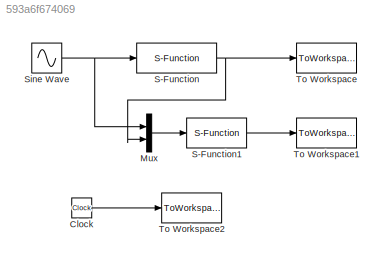
MODEL slx_593a6f674069
KIND model
CONFIG AbsTol = auto
CONFIG FixedStep = auto
CONFIG MaxStep = auto
CONFIG MinStep = auto
CONFIG RelTol = 1e-6
CONFIG SampleTimeConstraint = Unconstrained
CONFIG Solver = ode45
CONFIG SolverMode = Auto
CONFIG SolverName = ode45
CONFIG StartTime = 0.0
CONFIG StopTime = 10.0
BLOCK [Clock] Clock
BLOCK [Mux] Mux
  DisplayOption = bar
  Inputs = 2
  Ports = [2, 1]
BLOCK [S-Function] S-Function
  EnableBusSupport = off
  FunctionName = chap5_3plant
  Ports = [1, 1]
  SFunctionDeploymentMode = off
BLOCK [S-Function] S-Function1
  EnableBusSupport = off
  FunctionName = chap5_3obv
  Ports = [1, 1]
  SFunctionDeploymentMode = off
BLOCK [Sin] Sine Wave
  Ports = [0, 1]
  SampleTime = 0
BLOCK [ToWorkspace] To Workspace
  FixptAsFi = on
  MaxDataPoints = inf
  Ports = [1]
  SampleTime = -1
  VariableName = d
BLOCK [ToWorkspace] To Workspace1
  FixptAsFi = on
  MaxDataPoints = inf
  Ports = [1]
  SampleTime = -1
  VariableName = dp
BLOCK [ToWorkspace] To Workspace2
  FixptAsFi = on
  MaxDataPoints = inf
  Ports = [1]
  SampleTime = -1
  VariableName = t
LINE Clock:1 -> To Workspace2:1
LINE Mux:1 -> S-Function1:1
LINE S-Function1:1 -> To Workspace1:1
NET S-Function:1 -> Mux:2, To Workspace:1
NET Sine Wave:1 -> Mux:1, S-Function:1
note: NET lines group one-source signal fan-out (src -> all destinations, sorted); 1:1 wires keep LINE
